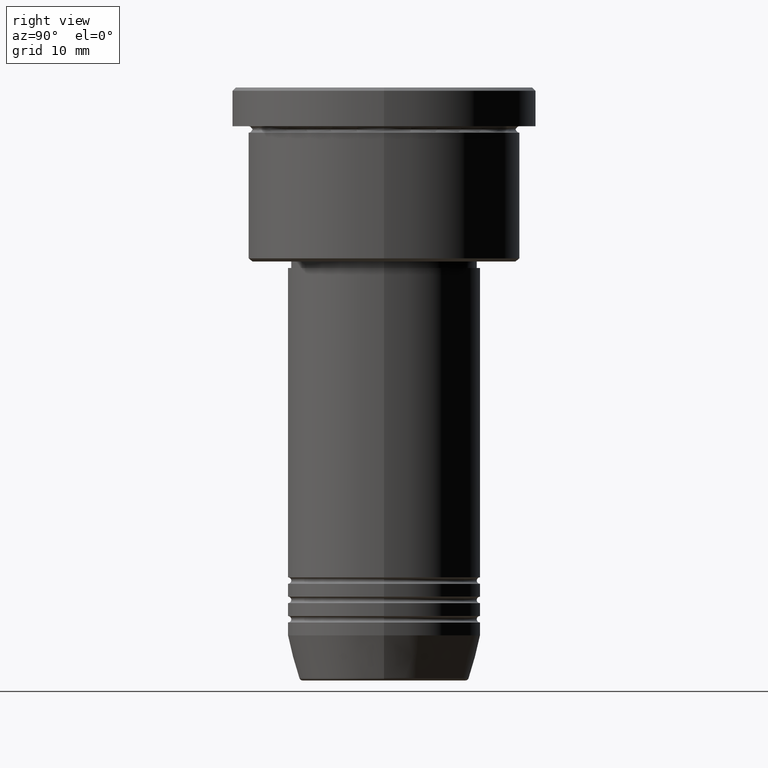
[diagram: clean part render]
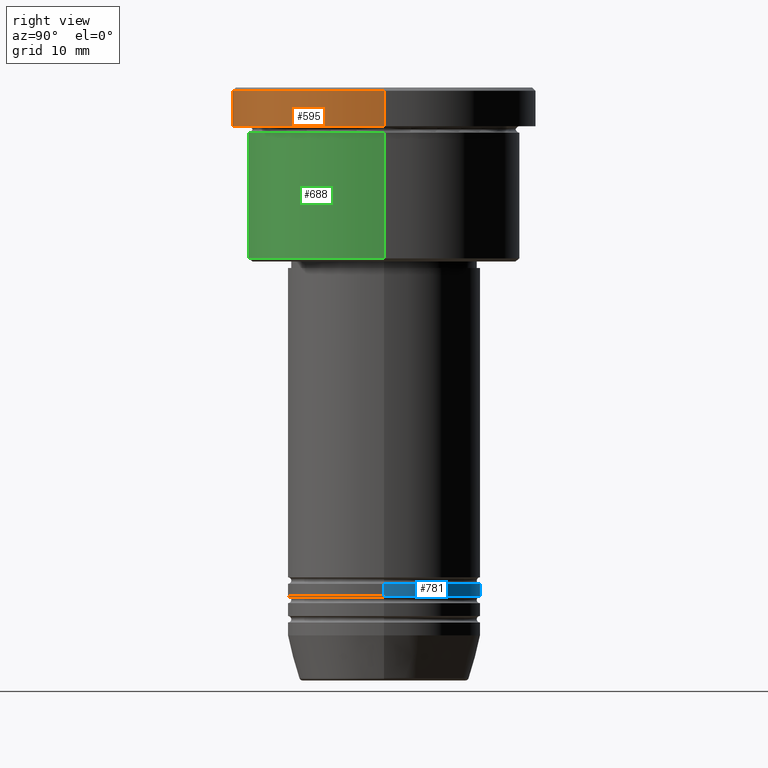
[diagram: same view with three faces highlighted in distinct colors, each labeled with its STEP entity id]
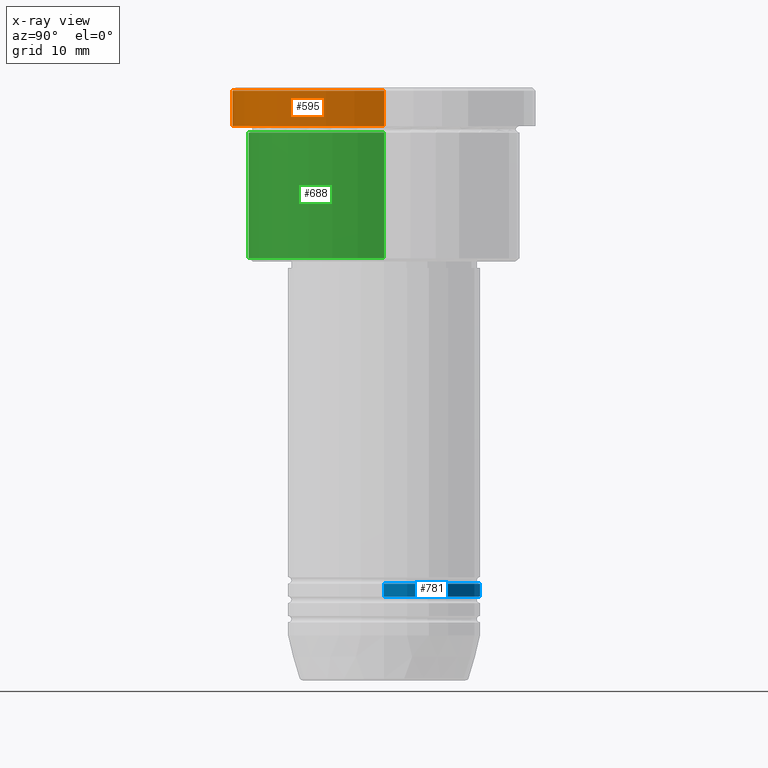
[diagram: x-ray of the same camera — body ghosted, the three highlighted faces saturated]
A machine part, right view with three faces highlighted in distinct colors.
The next image is the same camera in x-ray (body ghosted, the three faces saturated) — at least one of them is partly hidden behind the body in this view.
Their STEP definitions:

[orange] entity #595 — the highlighted cylindrical surface (partial cylindrical patch) has radius 23.5 mm, axis along (-0, -0, 1).
#37 = DIRECTION ( 'NONE',  ( -0.000000000000000000, -0.000000000000000000, 1.000000000000000000 ) ) ;
#95 = AXIS2_PLACEMENT_3D ( 'NONE', #393, #217, #844 ) ;
#171 = FACE_OUTER_BOUND ( 'NONE', #1085, .T. ) ;
#193 = CARTESIAN_POINT ( 'NONE',  ( 23.50000000000000000, 0.000000000000000000, -5.999999999999994671 ) ) ;
#217 = DIRECTION ( 'NONE',  ( -0.000000000000000000, -0.000000000000000000, 1.000000000000000000 ) ) ;
#221 = DIRECTION ( 'NONE',  ( -0.000000000000000000, -0.000000000000000000, 1.000000000000000000 ) ) ;
#231 = EDGE_CURVE ( 'NONE', #372, #510, #682, .T. ) ;
#233 = ORIENTED_EDGE ( 'NONE', *, *, #997, .T. ) ;
#350 = DIRECTION ( 'NONE',  ( 1.000000000000000000, 0.000000000000000000, 0.000000000000000000 ) ) ;
#352 = DIRECTION ( 'NONE',  ( 1.000000000000000000, 0.000000000000000000, 0.000000000000000000 ) ) ;
#371 = CARTESIAN_POINT ( 'NONE',  ( -23.50000000000000000, 2.877919977996280320E-15, -0.4999999999999865663 ) ) ;
#372 = VERTEX_POINT ( 'NONE', #193 ) ;
#393 = CARTESIAN_POINT ( 'NONE',  ( 0.000000000000000000, 0.000000000000000000, -5.999999999999994671 ) ) ;
#414 = VECTOR ( 'NONE', #221, 1000.000000000000000 ) ;
#417 = AXIS2_PLACEMENT_3D ( 'NONE', #525, #898, #350 ) ;
#420 = CARTESIAN_POINT ( 'NONE',  ( -23.50000000000000000, 2.877919977996280320E-15, -5.999999999999994671 ) ) ;
#459 = EDGE_CURVE ( 'NONE', #510, #484, #557, .T. ) ;
#464 = DIRECTION ( 'NONE',  ( 0.000000000000000000, 0.000000000000000000, -1.000000000000000000 ) ) ;
#484 = VERTEX_POINT ( 'NONE', #371 ) ;
#510 = VERTEX_POINT ( 'NONE', #1069 ) ;
#525 = CARTESIAN_POINT ( 'NONE',  ( 0.000000000000000000, 0.000000000000000000, 0.000000000000000000 ) ) ;
#557 = CIRCLE ( 'NONE', #643, 23.50000000000000000 ) ;
#569 = CARTESIAN_POINT ( 'NONE',  ( 23.50000000000000000, 0.000000000000000000, 0.000000000000000000 ) ) ;
#579 = VERTEX_POINT ( 'NONE', #420 ) ;
#595 = ADVANCED_FACE ( 'NONE', ( #171 ), #986, .T. ) ;
#597 = LINE ( 'NONE', #1047, #414 ) ;
#621 = CIRCLE ( 'NONE', #95, 23.50000000000000000 ) ;
#643 = AXIS2_PLACEMENT_3D ( 'NONE', #808, #464, #352 ) ;
#682 = LINE ( 'NONE', #569, #979 ) ;
#808 = CARTESIAN_POINT ( 'NONE',  ( 0.000000000000000000, 0.000000000000000000, -0.4999999999999865663 ) ) ;
#844 = DIRECTION ( 'NONE',  ( 1.000000000000000000, 0.000000000000000000, 0.000000000000000000 ) ) ;
#882 = ORIENTED_EDGE ( 'NONE', *, *, #231, .T. ) ;
#898 = DIRECTION ( 'NONE',  ( -0.000000000000000000, -0.000000000000000000, 1.000000000000000000 ) ) ;
#912 = ORIENTED_EDGE ( 'NONE', *, *, #459, .T. ) ;
#979 = VECTOR ( 'NONE', #37, 1000.000000000000000 ) ;
#986 = CYLINDRICAL_SURFACE ( 'NONE', #417, 23.50000000000000000 ) ;
#997 = EDGE_CURVE ( 'NONE', #579, #372, #621, .T. ) ;
#1030 = ORIENTED_EDGE ( 'NONE', *, *, #1087, .F. ) ;
#1047 = CARTESIAN_POINT ( 'NONE',  ( -23.50000000000000000, 2.877919977996280320E-15, 0.000000000000000000 ) ) ;
#1069 = CARTESIAN_POINT ( 'NONE',  ( 23.50000000000000000, 0.000000000000000000, -0.4999999999999865663 ) ) ;
#1085 = EDGE_LOOP ( 'NONE', ( #1030, #233, #882, #912 ) ) ;
#1087 = EDGE_CURVE ( 'NONE', #579, #484, #597, .T. ) ;

[blue] entity #781 — the highlighted cylindrical surface (partial cylindrical patch) has radius 15 mm, axis along (-0, -0, 1).
#187 = EDGE_CURVE ( 'NONE', #872, #312, #1042, .T. ) ;
#195 = CARTESIAN_POINT ( 'NONE',  ( -15.00000000000000000, 1.836970198721029589E-15, 0.000000000000000000 ) ) ;
#219 = VERTEX_POINT ( 'NONE', #311 ) ;
#267 = CARTESIAN_POINT ( 'NONE',  ( -15.00000000000000000, 1.836970198721029589E-15, -78.99999999999997158 ) ) ;
#298 = FACE_OUTER_BOUND ( 'NONE', #552, .T. ) ;
#311 = CARTESIAN_POINT ( 'NONE',  ( -15.00000000000000000, 1.836970198721029589E-15, -76.99999999999997158 ) ) ;
#312 = VERTEX_POINT ( 'NONE', #402 ) ;
#313 = CARTESIAN_POINT ( 'NONE',  ( 0.000000000000000000, 0.000000000000000000, 0.000000000000000000 ) ) ;
#354 = EDGE_CURVE ( 'NONE', #872, #629, #416, .T. ) ;
#378 = CARTESIAN_POINT ( 'NONE',  ( 15.00000000000000000, 0.000000000000000000, 0.000000000000000000 ) ) ;
#402 = CARTESIAN_POINT ( 'NONE',  ( 15.00000000000000000, 0.000000000000000000, -76.99999999999997158 ) ) ;
#416 = CIRCLE ( 'NONE', #1098, 15.00000000000000000 ) ;
#488 = ORIENTED_EDGE ( 'NONE', *, *, #617, .F. ) ;
#528 = CARTESIAN_POINT ( 'NONE',  ( 15.00000000000000000, 0.000000000000000000, -78.99999999999997158 ) ) ;
#552 = EDGE_LOOP ( 'NONE', ( #1056, #1182, #488, #818 ) ) ;
#562 = DIRECTION ( 'NONE',  ( -0.000000000000000000, -0.000000000000000000, 1.000000000000000000 ) ) ;
#617 = EDGE_CURVE ( 'NONE', #312, #219, #1100, .T. ) ;
#629 = VERTEX_POINT ( 'NONE', #267 ) ;
#657 = LINE ( 'NONE', #195, #1020 ) ;
#679 = AXIS2_PLACEMENT_3D ( 'NONE', #725, #914, #1095 ) ;
#686 = DIRECTION ( 'NONE',  ( -0.000000000000000000, -0.000000000000000000, 1.000000000000000000 ) ) ;
#725 = CARTESIAN_POINT ( 'NONE',  ( 0.000000000000000000, 0.000000000000000000, -76.99999999999997158 ) ) ;
#741 = CARTESIAN_POINT ( 'NONE',  ( 0.000000000000000000, 0.000000000000000000, -78.99999999999997158 ) ) ;
#755 = DIRECTION ( 'NONE',  ( -0.000000000000000000, -0.000000000000000000, 1.000000000000000000 ) ) ;
#781 = ADVANCED_FACE ( 'NONE', ( #298 ), #1064, .T. ) ;
#818 = ORIENTED_EDGE ( 'NONE', *, *, #187, .F. ) ;
#872 = VERTEX_POINT ( 'NONE', #528 ) ;
#902 = VECTOR ( 'NONE', #755, 1000.000000000000000 ) ;
#914 = DIRECTION ( 'NONE',  ( -0.000000000000000000, -0.000000000000000000, 1.000000000000000000 ) ) ;
#1002 = DIRECTION ( 'NONE',  ( -0.000000000000000000, -0.000000000000000000, 1.000000000000000000 ) ) ;
#1020 = VECTOR ( 'NONE', #562, 1000.000000000000000 ) ;
#1042 = LINE ( 'NONE', #378, #902 ) ;
#1053 = DIRECTION ( 'NONE',  ( 1.000000000000000000, 0.000000000000000000, 0.000000000000000000 ) ) ;
#1056 = ORIENTED_EDGE ( 'NONE', *, *, #354, .T. ) ;
#1064 = CYLINDRICAL_SURFACE ( 'NONE', #1094, 15.00000000000000000 ) ;
#1094 = AXIS2_PLACEMENT_3D ( 'NONE', #313, #686, #1053 ) ;
#1095 = DIRECTION ( 'NONE',  ( 1.000000000000000000, 0.000000000000000000, 0.000000000000000000 ) ) ;
#1098 = AXIS2_PLACEMENT_3D ( 'NONE', #741, #1002, #1105 ) ;
#1100 = CIRCLE ( 'NONE', #679, 15.00000000000000000 ) ;
#1105 = DIRECTION ( 'NONE',  ( 1.000000000000000000, 0.000000000000000000, 0.000000000000000000 ) ) ;
#1146 = EDGE_CURVE ( 'NONE', #629, #219, #657, .T. ) ;
#1182 = ORIENTED_EDGE ( 'NONE', *, *, #1146, .T. ) ;

[green] entity #688 — the highlighted cylindrical surface (partial cylindrical patch) has radius 21 mm, axis along (-0, -0, 1).
#3 = ORIENTED_EDGE ( 'NONE', *, *, #13, .T. ) ;
#5 = LINE ( 'NONE', #1120, #397 ) ;
#13 = EDGE_CURVE ( 'NONE', #796, #274, #153, .T. ) ;
#38 = VERTEX_POINT ( 'NONE', #921 ) ;
#98 = CIRCLE ( 'NONE', #938, 21.00000000000000000 ) ;
#121 = FACE_OUTER_BOUND ( 'NONE', #917, .T. ) ;
#153 = CIRCLE ( 'NONE', #456, 21.00000000000000000 ) ;
#164 = DIRECTION ( 'NONE',  ( -0.000000000000000000, -0.000000000000000000, 1.000000000000000000 ) ) ;
#209 = ORIENTED_EDGE ( 'NONE', *, *, #1088, .T. ) ;
#274 = VERTEX_POINT ( 'NONE', #291 ) ;
#277 = DIRECTION ( 'NONE',  ( -0.000000000000000000, -0.000000000000000000, 1.000000000000000000 ) ) ;
#283 = DIRECTION ( 'NONE',  ( -0.000000000000000000, -0.000000000000000000, 1.000000000000000000 ) ) ;
#291 = CARTESIAN_POINT ( 'NONE',  ( 21.00000000000000000, 0.000000000000000000, -26.49999999999997868 ) ) ;
#336 = VERTEX_POINT ( 'NONE', #452 ) ;
#363 = AXIS2_PLACEMENT_3D ( 'NONE', #839, #277, #670 ) ;
#397 = VECTOR ( 'NONE', #1010, 1000.000000000000000 ) ;
#415 = ORIENTED_EDGE ( 'NONE', *, *, #648, .F. ) ;
#452 = CARTESIAN_POINT ( 'NONE',  ( -21.00000000000000000, 2.571758278209441661E-15, -6.999999999999994671 ) ) ;
#456 = AXIS2_PLACEMENT_3D ( 'NONE', #1011, #164, #825 ) ;
#478 = CYLINDRICAL_SURFACE ( 'NONE', #363, 21.00000000000000000 ) ;
#581 = CARTESIAN_POINT ( 'NONE',  ( 21.00000000000000000, 0.000000000000000000, 0.000000000000000000 ) ) ;
#588 = DIRECTION ( 'NONE',  ( -0.000000000000000000, -0.000000000000000000, 1.000000000000000000 ) ) ;
#596 = CARTESIAN_POINT ( 'NONE',  ( -21.00000000000000000, 2.571758278209441661E-15, -26.49999999999997868 ) ) ;
#648 = EDGE_CURVE ( 'NONE', #796, #336, #5, .T. ) ;
#664 = DIRECTION ( 'NONE',  ( 1.000000000000000000, 0.000000000000000000, 0.000000000000000000 ) ) ;
#670 = DIRECTION ( 'NONE',  ( 1.000000000000000000, 0.000000000000000000, 0.000000000000000000 ) ) ;
#688 = ADVANCED_FACE ( 'NONE', ( #121 ), #478, .T. ) ;
#739 = CARTESIAN_POINT ( 'NONE',  ( 0.000000000000000000, 0.000000000000000000, -6.999999999999994671 ) ) ;
#776 = ORIENTED_EDGE ( 'NONE', *, *, #1079, .F. ) ;
#785 = VECTOR ( 'NONE', #588, 1000.000000000000000 ) ;
#796 = VERTEX_POINT ( 'NONE', #596 ) ;
#825 = DIRECTION ( 'NONE',  ( -1.000000000000000000, 0.000000000000000000, 0.000000000000000000 ) ) ;
#839 = CARTESIAN_POINT ( 'NONE',  ( 0.000000000000000000, 0.000000000000000000, 0.000000000000000000 ) ) ;
#862 = LINE ( 'NONE', #581, #785 ) ;
#917 = EDGE_LOOP ( 'NONE', ( #415, #3, #209, #776 ) ) ;
#921 = CARTESIAN_POINT ( 'NONE',  ( 21.00000000000000000, 0.000000000000000000, -6.999999999999994671 ) ) ;
#938 = AXIS2_PLACEMENT_3D ( 'NONE', #739, #283, #664 ) ;
#1010 = DIRECTION ( 'NONE',  ( -0.000000000000000000, -0.000000000000000000, 1.000000000000000000 ) ) ;
#1011 = CARTESIAN_POINT ( 'NONE',  ( 0.000000000000000000, 0.000000000000000000, -26.49999999999997868 ) ) ;
#1079 = EDGE_CURVE ( 'NONE', #336, #38, #98, .T. ) ;
#1088 = EDGE_CURVE ( 'NONE', #274, #38, #862, .T. ) ;
#1120 = CARTESIAN_POINT ( 'NONE',  ( -21.00000000000000000, 2.571758278209441661E-15, 0.000000000000000000 ) ) ;